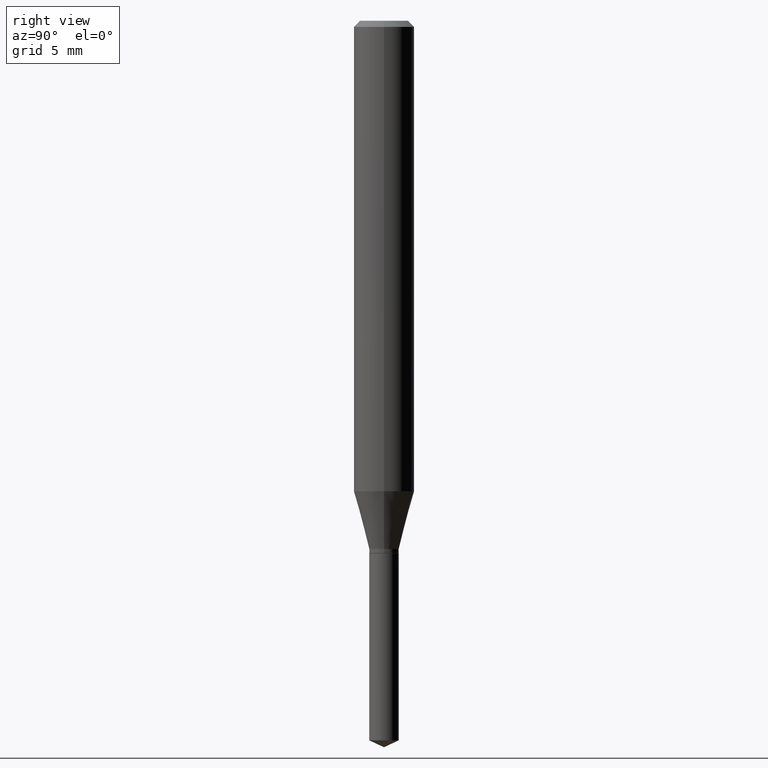
[diagram: clean part render]
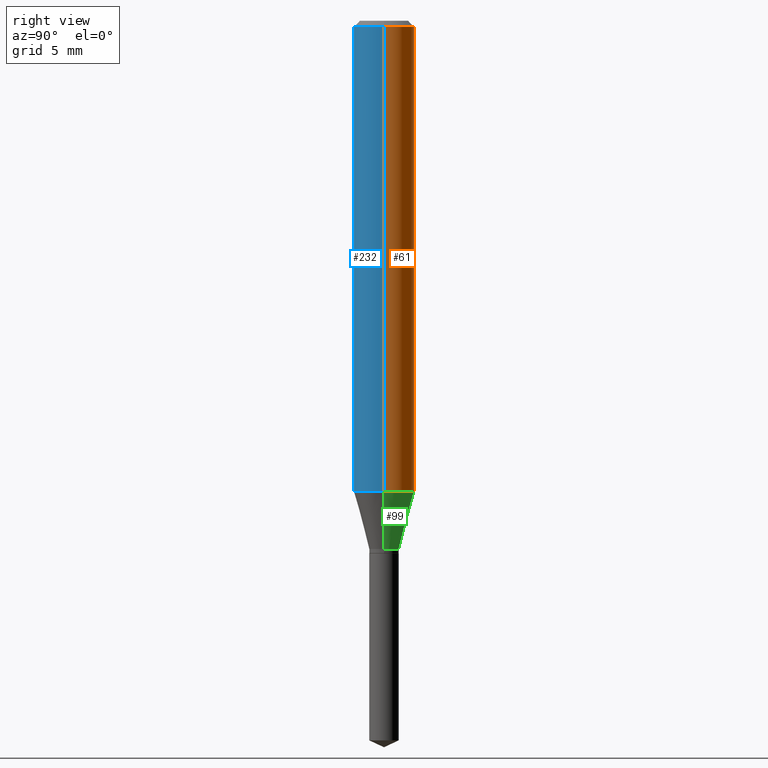
[diagram: same view with three faces highlighted in distinct colors, each labeled with its STEP entity id]
A machine part, right view with three faces highlighted in distinct colors.
Their STEP definitions:

[orange] entity #61 — the highlighted cylindrical surface (edge-blend (fillet) strip) has radius 1.5875 mm, axis along (-0, 0, 1).
#10 = CARTESIAN_POINT ( 'NONE',  ( -0.06250000000000005551, 4.440892098500630106E-16, -3.074334431409318916E-30 ) ) ;
#11 = AXIS2_PLACEMENT_3D ( 'NONE', #283, #354, #97 ) ;
#31 = CARTESIAN_POINT ( 'NONE',  ( -0.06250000000000000000, -1.273500298718897612E-15, -0.01250000000000008916 ) ) ;
#39 = EDGE_CURVE ( 'NONE', #235, #305, #147, .T. ) ;
#44 = DIRECTION ( 'NONE',  ( -2.445468806185136877E-29, 3.491481338843145188E-15, 1.000000000000000000 ) ) ;
#60 = CYLINDRICAL_SURFACE ( 'NONE', #152, 0.06250000000000005551 ) ;
#61 = ADVANCED_FACE ( 'NONE', ( #281 ), #60, .T. ) ;
#78 = DIRECTION ( 'NONE',  ( -2.445468806185136877E-29, 3.491481338843145188E-15, 1.000000000000000000 ) ) ;
#88 = VERTEX_POINT ( 'NONE', #31 ) ;
#94 = EDGE_LOOP ( 'NONE', ( #264, #116, #127, #159 ) ) ;
#97 = DIRECTION ( 'NONE',  ( 1.000000000000000000, -6.982962677686264344E-15, 0.000000000000000000 ) ) ;
#116 = ORIENTED_EDGE ( 'NONE', *, *, #336, .T. ) ;
#127 = ORIENTED_EDGE ( 'NONE', *, *, #386, .F. ) ;
#132 = EDGE_CURVE ( 'NONE', #235, #440, #375, .T. ) ;
#134 = CARTESIAN_POINT ( 'NONE',  ( 0.000000000000000000, 0.000000000000000000, 0.000000000000000000 ) ) ;
#140 = DIRECTION ( 'NONE',  ( -2.445468806185136597E-29, 3.491481338843145583E-15, 1.000000000000000000 ) ) ;
#145 = CARTESIAN_POINT ( 'NONE',  ( 0.06250000000000005551, -4.364351673553921131E-16, 3.047610484872463023E-30 ) ) ;
#147 = CIRCLE ( 'NONE', #11, 0.06250000000000012490 ) ;
#151 = LINE ( 'NONE', #10, #418 ) ;
#152 = AXIS2_PLACEMENT_3D ( 'NONE', #134, #140, #317 ) ;
#159 = ORIENTED_EDGE ( 'NONE', *, *, #132, .F. ) ;
#191 = DIRECTION ( 'NONE',  ( 1.000000000000000000, -6.982962677686266711E-15, 0.000000000000000000 ) ) ;
#235 = VERTEX_POINT ( 'NONE', #255 ) ;
#255 = CARTESIAN_POINT ( 'NONE',  ( 0.06250000000000012490, -3.827970667757776114E-15, -0.9713743741577957058 ) ) ;
#264 = ORIENTED_EDGE ( 'NONE', *, *, #39, .T. ) ;
#281 = FACE_OUTER_BOUND ( 'NONE', #94, .T. ) ;
#283 = CARTESIAN_POINT ( 'NONE',  ( 2.375465731130499033E-29, -3.391535500402383261E-15, -0.9713743741577957058 ) ) ;
#305 = VERTEX_POINT ( 'NONE', #370 ) ;
#317 = DIRECTION ( 'NONE',  ( 1.000000000000000000, -6.982962677686267499E-15, 4.876176775795936353E-29 ) ) ;
#336 = EDGE_CURVE ( 'NONE', #305, #88, #151, .T. ) ;
#337 = CARTESIAN_POINT ( 'NONE',  ( 0.06250000000000000000, -4.800786840909313294E-16, -0.01250000000000008916 ) ) ;
#354 = DIRECTION ( 'NONE',  ( -2.445468806185136597E-29, 3.491481338843145583E-15, 1.000000000000000000 ) ) ;
#370 = CARTESIAN_POINT ( 'NONE',  ( -0.06250000000000012490, -2.947446290552319856E-15, -0.9713743741577957058 ) ) ;
#375 = LINE ( 'NONE', #145, #435 ) ;
#379 = CIRCLE ( 'NONE', #390, 0.06250000000000000000 ) ;
#386 = EDGE_CURVE ( 'NONE', #440, #88, #379, .T. ) ;
#390 = AXIS2_PLACEMENT_3D ( 'NONE', #489, #452, #191 ) ;
#418 = VECTOR ( 'NONE', #44, 39.37007874015748143 ) ;
#435 = VECTOR ( 'NONE', #78, 39.37007874015748143 ) ;
#440 = VERTEX_POINT ( 'NONE', #337 ) ;
#452 = DIRECTION ( 'NONE',  ( -2.445468806185136597E-29, 3.491481338843145583E-15, 1.000000000000000000 ) ) ;
#489 = CARTESIAN_POINT ( 'NONE',  ( 3.056836007731442729E-31, -4.364351673553962300E-17, -0.01250000000000008916 ) ) ;

[blue] entity #232 — the highlighted cylindrical surface (edge-blend (fillet) strip) has radius 1.5875 mm, axis along (-0, 0, 1).
#10 = CARTESIAN_POINT ( 'NONE',  ( -0.06250000000000005551, 4.440892098500630106E-16, -3.074334431409318916E-30 ) ) ;
#31 = CARTESIAN_POINT ( 'NONE',  ( -0.06250000000000000000, -1.273500298718897612E-15, -0.01250000000000008916 ) ) ;
#33 = DIRECTION ( 'NONE',  ( 1.000000000000000000, -6.982962677686264344E-15, 0.000000000000000000 ) ) ;
#44 = DIRECTION ( 'NONE',  ( -2.445468806185136877E-29, 3.491481338843145188E-15, 1.000000000000000000 ) ) ;
#65 = AXIS2_PLACEMENT_3D ( 'NONE', #253, #406, #444 ) ;
#78 = DIRECTION ( 'NONE',  ( -2.445468806185136877E-29, 3.491481338843145188E-15, 1.000000000000000000 ) ) ;
#88 = VERTEX_POINT ( 'NONE', #31 ) ;
#90 = ORIENTED_EDGE ( 'NONE', *, *, #336, .F. ) ;
#132 = EDGE_CURVE ( 'NONE', #235, #440, #375, .T. ) ;
#143 = CYLINDRICAL_SURFACE ( 'NONE', #65, 0.06250000000000005551 ) ;
#145 = CARTESIAN_POINT ( 'NONE',  ( 0.06250000000000005551, -4.364351673553921131E-16, 3.047610484872463023E-30 ) ) ;
#149 = DIRECTION ( 'NONE',  ( -2.445468806185136597E-29, 3.491481338843145583E-15, 1.000000000000000000 ) ) ;
#150 = EDGE_LOOP ( 'NONE', ( #90, #427, #285, #458 ) ) ;
#151 = LINE ( 'NONE', #10, #418 ) ;
#232 = ADVANCED_FACE ( 'NONE', ( #372 ), #143, .T. ) ;
#235 = VERTEX_POINT ( 'NONE', #255 ) ;
#251 = CIRCLE ( 'NONE', #442, 0.06250000000000012490 ) ;
#253 = CARTESIAN_POINT ( 'NONE',  ( 0.000000000000000000, 0.000000000000000000, 0.000000000000000000 ) ) ;
#255 = CARTESIAN_POINT ( 'NONE',  ( 0.06250000000000012490, -3.827970667757776114E-15, -0.9713743741577957058 ) ) ;
#261 = EDGE_CURVE ( 'NONE', #88, #440, #405, .T. ) ;
#285 = ORIENTED_EDGE ( 'NONE', *, *, #132, .T. ) ;
#291 = DIRECTION ( 'NONE',  ( 1.000000000000000000, -6.982962677686266711E-15, 0.000000000000000000 ) ) ;
#297 = EDGE_CURVE ( 'NONE', #305, #235, #251, .T. ) ;
#305 = VERTEX_POINT ( 'NONE', #370 ) ;
#329 = CARTESIAN_POINT ( 'NONE',  ( 3.056836007731442729E-31, -4.364351673553962300E-17, -0.01250000000000008916 ) ) ;
#336 = EDGE_CURVE ( 'NONE', #305, #88, #151, .T. ) ;
#337 = CARTESIAN_POINT ( 'NONE',  ( 0.06250000000000000000, -4.800786840909313294E-16, -0.01250000000000008916 ) ) ;
#358 = CARTESIAN_POINT ( 'NONE',  ( 2.375465731130499033E-29, -3.391535500402383261E-15, -0.9713743741577957058 ) ) ;
#370 = CARTESIAN_POINT ( 'NONE',  ( -0.06250000000000012490, -2.947446290552319856E-15, -0.9713743741577957058 ) ) ;
#372 = FACE_OUTER_BOUND ( 'NONE', #150, .T. ) ;
#375 = LINE ( 'NONE', #145, #435 ) ;
#405 = CIRCLE ( 'NONE', #484, 0.06250000000000000000 ) ;
#406 = DIRECTION ( 'NONE',  ( -2.445468806185136597E-29, 3.491481338843145583E-15, 1.000000000000000000 ) ) ;
#418 = VECTOR ( 'NONE', #44, 39.37007874015748143 ) ;
#427 = ORIENTED_EDGE ( 'NONE', *, *, #297, .T. ) ;
#435 = VECTOR ( 'NONE', #78, 39.37007874015748143 ) ;
#440 = VERTEX_POINT ( 'NONE', #337 ) ;
#442 = AXIS2_PLACEMENT_3D ( 'NONE', #358, #482, #33 ) ;
#444 = DIRECTION ( 'NONE',  ( 1.000000000000000000, -6.982962677686267499E-15, 4.876176775795936353E-29 ) ) ;
#458 = ORIENTED_EDGE ( 'NONE', *, *, #261, .F. ) ;
#482 = DIRECTION ( 'NONE',  ( -2.445468806185136597E-29, 3.491481338843145583E-15, 1.000000000000000000 ) ) ;
#484 = AXIS2_PLACEMENT_3D ( 'NONE', #329, #149, #291 ) ;

[green] entity #99 — the highlighted conical surface has half-angle 15 deg.
#11 = AXIS2_PLACEMENT_3D ( 'NONE', #283, #354, #97 ) ;
#39 = EDGE_CURVE ( 'NONE', #235, #305, #147, .T. ) ;
#56 = EDGE_CURVE ( 'NONE', #268, #235, #437, .T. ) ;
#58 = DIRECTION ( 'NONE',  ( 1.000000000000000000, -6.982962677686269866E-15, 0.000000000000000000 ) ) ;
#75 = VECTOR ( 'NONE', #243, 39.37007874015748854 ) ;
#79 = LINE ( 'NONE', #459, #311 ) ;
#97 = DIRECTION ( 'NONE',  ( 1.000000000000000000, -6.982962677686264344E-15, 0.000000000000000000 ) ) ;
#99 = ADVANCED_FACE ( 'NONE', ( #182 ), #160, .T. ) ;
#119 = AXIS2_PLACEMENT_3D ( 'NONE', #439, #395, #411 ) ;
#147 = CIRCLE ( 'NONE', #11, 0.06250000000000012490 ) ;
#160 = CONICAL_SURFACE ( 'NONE', #274, 0.03049999999999999586, 0.2617993877991499629 ) ;
#162 = EDGE_CURVE ( 'NONE', #268, #338, #377, .T. ) ;
#182 = FACE_OUTER_BOUND ( 'NONE', #227, .T. ) ;
#205 = ORIENTED_EDGE ( 'NONE', *, *, #162, .T. ) ;
#227 = EDGE_LOOP ( 'NONE', ( #205, #402, #424, #363 ) ) ;
#235 = VERTEX_POINT ( 'NONE', #255 ) ;
#243 = DIRECTION ( 'NONE',  ( 0.2588190451025212391, 1.565188264969622362E-15, 0.9659258262890679791 ) ) ;
#255 = CARTESIAN_POINT ( 'NONE',  ( 0.06250000000000012490, -3.827970667757776114E-15, -0.9713743741577957058 ) ) ;
#268 = VERTEX_POINT ( 'NONE', #292 ) ;
#274 = AXIS2_PLACEMENT_3D ( 'NONE', #324, #279, #58 ) ;
#279 = DIRECTION ( 'NONE',  ( -2.445468806185136597E-29, 3.491481338843145583E-15, 1.000000000000000000 ) ) ;
#283 = CARTESIAN_POINT ( 'NONE',  ( 2.375465731130499033E-29, -3.391535500402383261E-15, -0.9713743741577957058 ) ) ;
#292 = CARTESIAN_POINT ( 'NONE',  ( 0.03049999999999999586, -4.021488206079534971E-15, -1.090799999999999992 ) ) ;
#305 = VERTEX_POINT ( 'NONE', #370 ) ;
#311 = VECTOR ( 'NONE', #339, 39.37007874015748854 ) ;
#324 = CARTESIAN_POINT ( 'NONE',  ( 2.667517373786747418E-29, -3.808507844410103647E-15, -1.090799999999999992 ) ) ;
#338 = VERTEX_POINT ( 'NONE', #412 ) ;
#339 = DIRECTION ( 'NONE',  ( -0.2588190451025212391, 5.211531920934549464E-15, 0.9659258262890679791 ) ) ;
#350 = EDGE_CURVE ( 'NONE', #338, #305, #79, .T. ) ;
#354 = DIRECTION ( 'NONE',  ( -2.445468806185136597E-29, 3.491481338843145583E-15, 1.000000000000000000 ) ) ;
#363 = ORIENTED_EDGE ( 'NONE', *, *, #56, .F. ) ;
#370 = CARTESIAN_POINT ( 'NONE',  ( -0.06250000000000012490, -2.947446290552319856E-15, -0.9713743741577957058 ) ) ;
#377 = CIRCLE ( 'NONE', #119, 0.03049999999999999586 ) ;
#395 = DIRECTION ( 'NONE',  ( -2.445468806185136597E-29, 3.491481338843145583E-15, 1.000000000000000000 ) ) ;
#402 = ORIENTED_EDGE ( 'NONE', *, *, #350, .T. ) ;
#411 = DIRECTION ( 'NONE',  ( 1.000000000000000000, -6.982962677686269866E-15, 0.000000000000000000 ) ) ;
#412 = CARTESIAN_POINT ( 'NONE',  ( -0.03049999999999999586, -3.606980253827240768E-15, -1.090799999999999992 ) ) ;
#424 = ORIENTED_EDGE ( 'NONE', *, *, #39, .F. ) ;
#437 = LINE ( 'NONE', #469, #75 ) ;
#439 = CARTESIAN_POINT ( 'NONE',  ( 2.667517373786747418E-29, -3.808507844410103647E-15, -1.090799999999999992 ) ) ;
#459 = CARTESIAN_POINT ( 'NONE',  ( -0.03049999999999999586, -3.591792310003273292E-15, -1.090799999999999992 ) ) ;
#469 = CARTESIAN_POINT ( 'NONE',  ( 0.03049999999999999586, -4.021488206079534971E-15, -1.090799999999999992 ) ) ;